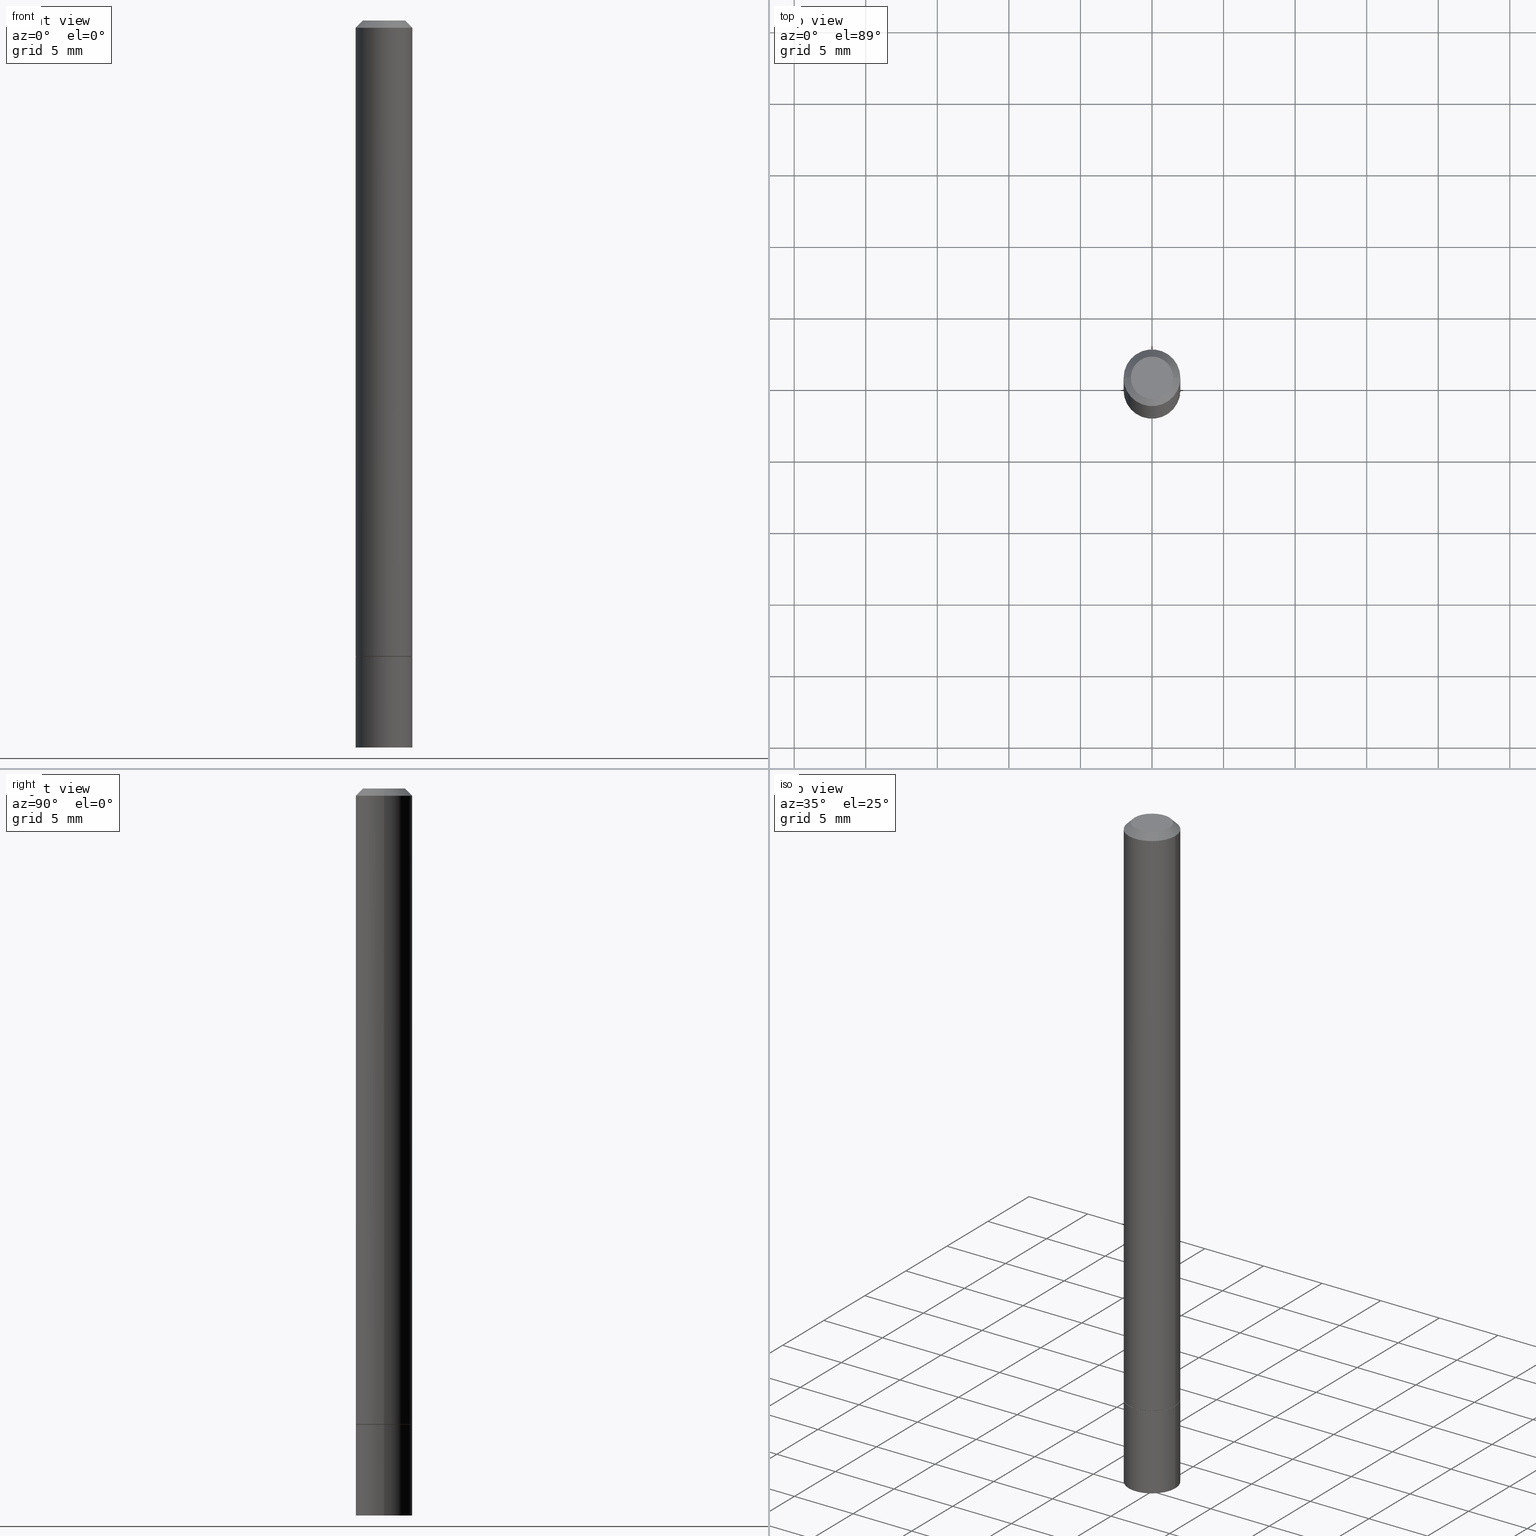
[diagram: canonical four-view strip — front | top / right | iso, engineering-drawing reading convention]
A machine part, canonical four-view strip (front | top / right | iso — engineering-drawing reading convention). The complete STEP part file that produces these views, byte-faithful:
ISO-10303-21;
HEADER;
FILE_DESCRIPTION (( 'STEP AP203' ),
    '1' );
FILE_NAME ('32656.STEP',
    '2022-04-27T15:46:34',
    ( '' ),
    ( '' ),
    'SwSTEP 2.0',
    'SolidWorks 2022',
    '' );
FILE_SCHEMA (( 'CONFIG_CONTROL_DESIGN' ));
ENDSEC;

DATA;
#1 = VECTOR ( 'NONE', #71, 39.37007874015748143 ) ;
#2 = LINE ( 'NONE', #296, #149 ) ;
#3 = ORIENTED_EDGE ( 'NONE', *, *, #269, .T. ) ;
#4 = PERSON_AND_ORGANIZATION ( #363, #278 ) ;
#5 = CARTESIAN_POINT ( 'NONE',  ( 4.279570410823988484E-29, -6.110092342975504671E-15, -1.750000000000000000 ) ) ;
#6 = PRODUCT_DEFINITION ( 'UNKNOWN', '', #216, #56 ) ;
#7 = AXIS2_PLACEMENT_3D ( 'NONE', #118, #110, #234 ) ;
#8 = LINE ( 'NONE', #215, #91 ) ;
#9 = ORIENTED_EDGE ( 'NONE', *, *, #354, .F. ) ;
#10 = CARTESIAN_POINT ( 'NONE',  ( 0.000000000000000000, 0.000000000000000000, 0.000000000000000000 ) ) ;
#11 = ORIENTED_EDGE ( 'NONE', *, *, #310, .T. ) ;
#12 = CIRCLE ( 'NONE', #228, 0.07810000000000000275 ) ;
#13 = LENGTH_MEASURE_WITH_UNIT ( LENGTH_MEASURE( 0.02539999999999999897 ), #43 );
#14 = CIRCLE ( 'NONE', #123, 0.07810000000000000275 ) ;
#15 = CARTESIAN_POINT ( 'NONE',  ( 4.279570410823988484E-29, -6.110092342975504671E-15, -1.750000000000000000 ) ) ;
#16 = CARTESIAN_POINT ( 'NONE',  ( 5.453693851273401335E-16, 0.07809999999999388265, -1.750000000000000222 ) ) ;
#17 = APPROVAL ( #45, 'UNSPECIFIED' ) ;
#18 = CARTESIAN_POINT ( 'NONE',  ( 0.07710000000000000187, -6.648478765425115304E-15, -1.750000000000000000 ) ) ;
#19 = DATE_TIME_ROLE ( 'creation_date' ) ;
#20 = ORIENTED_EDGE ( 'NONE', *, *, #189, .F. ) ;
#21 = DIRECTION ( 'NONE',  ( -2.445468806185136597E-29, 3.491481338843145583E-15, 1.000000000000000000 ) ) ;
#22 = PERSON_AND_ORGANIZATION_ROLE ( 'creator' ) ;
#23 = CARTESIAN_POINT ( 'NONE',  ( 0.05809999999999978376, -5.021147270366713481E-16, -1.707404996039847118E-17 ) ) ;
#24 = CC_DESIGN_APPROVAL ( #17, ( #216 ) ) ;
#25 = DIRECTION ( 'NONE',  ( -1.000000000000000000, 6.982962677686265922E-15, 0.000000000000000000 ) ) ;
#26 = ORIENTED_EDGE ( 'NONE', *, *, #138, .F. ) ;
#27 = EDGE_CURVE ( 'NONE', #131, #72, #231, .T. ) ;
#28 = DIRECTION ( 'NONE',  ( 1.000000000000000000, 0.000000000000000000, 0.000000000000000000 ) ) ;
#29 = CARTESIAN_POINT ( 'NONE',  ( 4.890937612370288047E-31, -6.982962677686311331E-17, -0.02000000000000005940 ) ) ;
#30 = APPLICATION_PROTOCOL_DEFINITION ( 'international standard', 'config_control_design', 1994, #301 ) ;
#31 = VERTEX_POINT ( 'NONE', #121 ) ;
#32 = CARTESIAN_POINT ( 'NONE',  ( 0.000000000000000000, 0.000000000000000000, 0.000000000000000000 ) ) ;
#33 = CARTESIAN_POINT ( 'NONE',  ( 2.336098923648286473E-18, -6.978202948672662576E-15, -1.998636759429106569 ) ) ;
#34 = CONICAL_SURFACE ( 'NONE', #246, 0.07710000000000000187, 0.7853981633974141952 ) ;
#35 = VERTEX_POINT ( 'NONE', #53 ) ;
#36 = ADVANCED_FACE ( 'NONE', ( #117 ), #279, .T. ) ;
#37 = DIRECTION ( 'NONE',  ( -2.445468806185136877E-29, 3.491481338843145188E-15, 1.000000000000000000 ) ) ;
#38 = DIRECTION ( 'NONE',  ( 1.000000000000000000, -6.982962677686266711E-15, 0.000000000000000000 ) ) ;
#39 = VECTOR ( 'NONE', #329, 39.37007874015748143 ) ;
#40 = DIRECTION ( 'NONE',  ( -2.445468806185136597E-29, 3.491481338843145583E-15, 1.000000000000000000 ) ) ;
#41 = ORIENTED_EDGE ( 'NONE', *, *, #354, .T. ) ;
#42 = APPROVAL_PERSON_ORGANIZATION ( #206, #17, #374 ) ;
#43 =( LENGTH_UNIT ( ) NAMED_UNIT ( * ) SI_UNIT ( $, .METRE. ) );
#44 = DIRECTION ( 'NONE',  ( -2.445468806185136597E-29, 3.491481338843145583E-15, 1.000000000000000000 ) ) ;
#45 = APPROVAL_STATUS ( 'not_yet_approved' ) ;
#46 = ORIENTED_EDGE ( 'NONE', *, *, #240, .F. ) ;
#47 = PERSON_AND_ORGANIZATION_ROLE ( 'design_supplier' ) ;
#48 = DIRECTION ( 'NONE',  ( -1.000000000000000000, 6.982962677686265922E-15, 0.000000000000000000 ) ) ;
#49 = FACE_OUTER_BOUND ( 'NONE', #163, .T. ) ;
#50 = VERTEX_POINT ( 'NONE', #23 ) ;
#51 = CARTESIAN_POINT ( 'NONE',  ( 4.889235139238314734E-29, -6.975866849749063412E-15, -1.998636759429106569 ) ) ;
#52 = SHAPE_DEFINITION_REPRESENTATION ( #126, #137 ) ;
#53 = CARTESIAN_POINT ( 'NONE',  ( 0.07710000000000000187, -6.648478765425115304E-15, -1.750000000000000000 ) ) ;
#54 = EDGE_CURVE ( 'NONE', #66, #135, #286, .T. ) ;
#55 = MANIFOLD_SOLID_BREP ( 'Body-Move/Copy2[1]', #383 ) ;
#56 = DESIGN_CONTEXT ( 'detailed design', #136, 'design' ) ;
#57 = AXIS2_PLACEMENT_3D ( 'NONE', #232, #21, #116 ) ;
#58 = LOCAL_TIME ( 11, 46, 34.00000000000000000, #254 ) ;
#59 = APPROVAL_DATE_TIME ( #187, #201 ) ;
#60 = CARTESIAN_POINT ( 'NONE',  ( -2.336098923550534358E-18, -6.978202948672662576E-15, -1.998636759429106569 ) ) ;
#61 = COORDINATED_UNIVERSAL_TIME_OFFSET ( 5, 0, .BEHIND. ) ;
#62 = CARTESIAN_POINT ( 'NONE',  ( -0.07710000000000000187, -5.556965439356245407E-15, -1.750000000000000000 ) ) ;
#63 = EDGE_LOOP ( 'NONE', ( #26, #173, #102 ) ) ;
#64 = CALENDAR_DATE ( 2022, 27, 4 ) ;
#65 = CARTESIAN_POINT ( 'NONE',  ( 4.890937612370288047E-31, -6.982962677686311331E-17, -0.02000000000000005940 ) ) ;
#66 = VERTEX_POINT ( 'NONE', #259 ) ;
#67 = APPROVAL_PERSON_ORGANIZATION ( #4, #201, #263 ) ;
#68 = CC_DESIGN_PERSON_AND_ORGANIZATION_ASSIGNMENT ( #196, #47, ( #216 ) ) ;
#69 = AXIS2_PLACEMENT_3D ( 'NONE', #389, #82, #85 ) ;
#70 = ORIENTED_EDGE ( 'NONE', *, *, #27, .F. ) ;
#71 = DIRECTION ( 'NONE',  ( 0.7071067811865466846, -7.319954787623252890E-15, -0.7071067811865483499 ) ) ;
#72 = VERTEX_POINT ( 'NONE', #88 ) ;
#73 = DIRECTION ( 'NONE',  ( 1.000000000000000000, -6.982962677686266711E-15, 4.877663522807080384E-29 ) ) ;
#74 = ADVANCED_FACE ( 'NONE', ( #294 ), #384, .T. ) ;
#75 = VECTOR ( 'NONE', #350, 39.37007874015748854 ) ;
#76 = CC_DESIGN_PERSON_AND_ORGANIZATION_ASSIGNMENT ( #328, #157, ( #362 ) ) ;
#77 = CIRCLE ( 'NONE', #273, 0.07809999999999978071 ) ;
#78 = CARTESIAN_POINT ( 'NONE',  ( 4.175405657340879278E-46, -5.961372681521788801E-32, -1.707404996040164512E-17 ) ) ;
#79 = APPROVAL_DATE_TIME ( #199, #17 ) ;
#80 = CARTESIAN_POINT ( 'NONE',  ( 4.057101315735705442E-16, 0.05809999999999978376, -2.113920907669868157E-16 ) ) ;
#81 = DIRECTION ( 'NONE',  ( 2.445468806185136597E-29, -3.491481338843145583E-15, -1.000000000000000000 ) ) ;
#82 = DIRECTION ( 'NONE',  ( -2.445468806185136597E-29, 3.491481338843145583E-15, 1.000000000000000000 ) ) ;
#83 = AXIS2_PLACEMENT_3D ( 'NONE', #344, #81, #25 ) ;
#84 = CARTESIAN_POINT ( 'NONE',  ( 4.279570410823988484E-29, -6.110092342975504671E-15, -1.750000000000000000 ) ) ;
#85 = DIRECTION ( 'NONE',  ( 1.000000000000000000, -6.982962677686266711E-15, 0.000000000000000000 ) ) ;
#86 = CARTESIAN_POINT ( 'NONE',  ( -0.07809999999999978071, 4.755397583504327577E-16, -0.02000000000000005940 ) ) ;
#87 = CALENDAR_DATE ( 2022, 27, 4 ) ;
#88 = CARTESIAN_POINT ( 'NONE',  ( 0.07810000000000000275, -6.651970246763958311E-15, -1.748999999999999888 ) ) ;
#89 = CARTESIAN_POINT ( 'NONE',  ( 0.07809999999999987785, -5.453693851272966475E-16, 3.808294061896620098E-30 ) ) ;
#90 = ORIENTED_EDGE ( 'NONE', *, *, #108, .F. ) ;
#91 = VECTOR ( 'NONE', #37, 39.37007874015748143 ) ;
#92 = APPROVAL_STATUS ( 'not_yet_approved' ) ;
#93 = DIRECTION ( 'NONE',  ( -2.445468806185136597E-29, 3.491481338843145583E-15, 1.000000000000000000 ) ) ;
#94 = VERTEX_POINT ( 'NONE', #375 ) ;
#95 = ORIENTED_EDGE ( 'NONE', *, *, #217, .T. ) ;
#96 = CC_DESIGN_PERSON_AND_ORGANIZATION_ASSIGNMENT ( #211, #325, ( #6 ) ) ;
#97 = ORIENTED_EDGE ( 'NONE', *, *, #54, .F. ) ;
#98 = AXIS2_PLACEMENT_3D ( 'NONE', #78, #371, #227 ) ;
#99 = DIRECTION ( 'NONE',  ( 1.000000000000000000, -6.982962677686265922E-15, 4.876176775795935793E-29 ) ) ;
#100 = ADVANCED_FACE ( 'NONE', ( #322 ), #111, .F. ) ;
#101 = LINE ( 'NONE', #357, #39 ) ;
#102 = ORIENTED_EDGE ( 'NONE', *, *, #356, .F. ) ;
#103 = EDGE_LOOP ( 'NONE', ( #148, #177 ) ) ;
#104 = ORIENTED_EDGE ( 'NONE', *, *, #340, .T. ) ;
#105 = VECTOR ( 'NONE', #218, 39.37007874015748854 ) ;
#106 = DIMENSIONAL_EXPONENTS ( 1.000000000000000000, 0.000000000000000000, 0.000000000000000000, 0.000000000000000000, 0.000000000000000000, 0.000000000000000000, 0.000000000000000000 ) ;
#107 = ADVANCED_FACE ( 'NONE', ( #208 ), #34, .T. ) ;
#108 = EDGE_CURVE ( 'NONE', #315, #66, #324, .T. ) ;
#109 = CARTESIAN_POINT ( 'NONE',  ( 4.890937612370273194E-29, -6.982962677686291165E-15, -2.000000000000000000 ) ) ;
#110 = DIRECTION ( 'NONE',  ( 2.445468806185136597E-29, -3.491481338843145583E-15, -1.000000000000000000 ) ) ;
#111 = PLANE ( 'NONE',  #361 ) ;
#112 = DIRECTION ( 'NONE',  ( 1.000000000000000000, -6.982962677686266711E-15, 0.000000000000000000 ) ) ;
#113 = DATE_AND_TIME ( #377, #58 ) ;
#114 = ORIENTED_EDGE ( 'NONE', *, *, #340, .F. ) ;
#115 = AXIS2_PLACEMENT_3D ( 'NONE', #5, #125, #99 ) ;
#116 = DIRECTION ( 'NONE',  ( 1.000000000000000000, -6.982962677686266711E-15, 0.000000000000000000 ) ) ;
#117 = FACE_OUTER_BOUND ( 'NONE', #244, .T. ) ;
#118 = CARTESIAN_POINT ( 'NONE',  ( 1.011659033061865591E-27, -1.444380981787177786E-13, -41.36871549958658534 ) ) ;
#119 = ORIENTED_EDGE ( 'NONE', *, *, #217, .F. ) ;
#120 =( NAMED_UNIT ( * ) PLANE_ANGLE_UNIT ( ) SI_UNIT ( $, .RADIAN. ) );
#121 = CARTESIAN_POINT ( 'NONE',  ( 0.07810000000000000275, -6.655461728102802107E-15, -1.750000000000000000 ) ) ;
#122 = EDGE_LOOP ( 'NONE', ( #237, #230, #293, #222 ) ) ;
#123 = AXIS2_PLACEMENT_3D ( 'NONE', #205, #373, #287 ) ;
#124 = EDGE_LOOP ( 'NONE', ( #97, #355, #204, #295 ) ) ;
#125 = DIRECTION ( 'NONE',  ( -2.438088387897960049E-29, 3.491481338843145188E-15, 1.000000000000000000 ) ) ;
#126 = PRODUCT_DEFINITION_SHAPE ( 'NONE', 'NONE',  #6 ) ;
#127 = ORIENTED_EDGE ( 'NONE', *, *, #367, .F. ) ;
#128 = ADVANCED_FACE ( 'NONE', ( #172 ), #284, .F. ) ;
#129 = CC_DESIGN_SECURITY_CLASSIFICATION ( #292, ( #216 ) ) ;
#130 = DIRECTION ( 'NONE',  ( 1.000000000000000000, -6.982962677686265922E-15, 0.000000000000000000 ) ) ;
#131 = VERTEX_POINT ( 'NONE', #145 ) ;
#132 = EDGE_LOOP ( 'NONE', ( #104, #351, #154, #214 ) ) ;
#133 = CIRCLE ( 'NONE', #210, 0.07810000000000000275 ) ;
#134 = CC_DESIGN_PERSON_AND_ORGANIZATION_ASSIGNMENT ( #169, #22, ( #216 ) ) ;
#135 = VERTEX_POINT ( 'NONE', #255 ) ;
#136 = APPLICATION_CONTEXT ( 'configuration controlled 3d designs of mechanical parts and assemblies' ) ;
#137 = ADVANCED_BREP_SHAPE_REPRESENTATION ( '32656', ( #55, #190, #380 ), #297 ) ;
#138 = EDGE_CURVE ( 'NONE', #315, #267, #239, .T. ) ;
#139 =( CONVERSION_BASED_UNIT ( 'INCH', #13 ) LENGTH_UNIT ( ) NAMED_UNIT ( #106 ) );
#140 = AXIS2_PLACEMENT_3D ( 'NONE', #285, #309, #143 ) ;
#141 = FACE_OUTER_BOUND ( 'NONE', #63, .T. ) ;
#142 = DIRECTION ( 'NONE',  ( 2.445468806185136597E-29, -3.491481338843145583E-15, -1.000000000000000000 ) ) ;
#143 = DIRECTION ( 'NONE',  ( 1.000000000000000000, -6.982962677686266711E-15, 0.000000000000000000 ) ) ;
#144 = PERSON_AND_ORGANIZATION_ROLE ( 'classification_officer' ) ;
#145 = CARTESIAN_POINT ( 'NONE',  ( -0.07810000000000000275, -2.533281367578119089E-15, -1.748999999999999888 ) ) ;
#146 = CYLINDRICAL_SURFACE ( 'NONE', #352, 0.07809999999999987785 ) ;
#147 = APPROVAL_ROLE ( '' ) ;
#148 = ORIENTED_EDGE ( 'NONE', *, *, #167, .T. ) ;
#149 = VECTOR ( 'NONE', #271, 39.37007874015748143 ) ;
#150 = EDGE_CURVE ( 'NONE', #267, #31, #8, .T. ) ;
#151 = VECTOR ( 'NONE', #264, 39.37007874015748143 ) ;
#152 = DIRECTION ( 'NONE',  ( -2.445468806185136597E-29, 3.491481338843145583E-15, 1.000000000000000000 ) ) ;
#153 = DIRECTION ( 'NONE',  ( -2.445468806185136597E-29, 3.491481338843145583E-15, 1.000000000000000000 ) ) ;
#154 = ORIENTED_EDGE ( 'NONE', *, *, #310, .F. ) ;
#155 = ORIENTED_EDGE ( 'NONE', *, *, #183, .F. ) ;
#156 = AXIS2_PLACEMENT_3D ( 'NONE', #253, #342, #314 ) ;
#157 = PERSON_AND_ORGANIZATION_ROLE ( 'design_owner' ) ;
#158 = ORIENTED_EDGE ( 'NONE', *, *, #347, .F. ) ;
#159 = CARTESIAN_POINT ( 'NONE',  ( 4.279570410823988484E-29, -6.110092342975504671E-15, -1.750000000000000000 ) ) ;
#160 = DIRECTION ( 'NONE',  ( -2.445468806185136597E-29, 3.491481338843145583E-15, 1.000000000000000000 ) ) ;
#161 = CIRCLE ( 'NONE', #171, 0.07710000000000000187 ) ;
#162 = CARTESIAN_POINT ( 'NONE',  ( 4.890937612370288047E-31, -6.982962677686311331E-17, -0.02000000000000005940 ) ) ;
#163 = EDGE_LOOP ( 'NONE', ( #119, #166, #272, #182 ) ) ;
#164 = LOCAL_TIME ( 11, 46, 34.00000000000000000, #61 ) ;
#165 = CLOSED_SHELL ( 'NONE', ( #107, #302, #36, #387, #280, #319, #174, #100 ) ) ;
#166 = ORIENTED_EDGE ( 'NONE', *, *, #27, .T. ) ;
#167 = EDGE_CURVE ( 'NONE', #31, #135, #133, .T. ) ;
#168 = DIRECTION ( 'NONE',  ( -2.445468806185136877E-29, 3.491481338843145188E-15, 1.000000000000000000 ) ) ;
#169 = PERSON_AND_ORGANIZATION ( #363, #278 ) ;
#170 = DIRECTION ( 'NONE',  ( 1.000000000000000000, -6.982962677686267499E-15, 4.876176775795935793E-29 ) ) ;
#171 = AXIS2_PLACEMENT_3D ( 'NONE', #15, #152, #348 ) ;
#172 = FACE_OUTER_BOUND ( 'NONE', #103, .T. ) ;
#173 = ORIENTED_EDGE ( 'NONE', *, *, #108, .T. ) ;
#174 = ADVANCED_FACE ( 'NONE', ( #191 ), #333, .F. ) ;
#175 = CYLINDRICAL_SURFACE ( 'NONE', #248, 0.07809999999999987785 ) ;
#176 = DATE_AND_TIME ( #181, #164 ) ;
#177 = ORIENTED_EDGE ( 'NONE', *, *, #308, .T. ) ;
#178 = CARTESIAN_POINT ( 'NONE',  ( 1.011659033061865591E-27, -1.444380981787177786E-13, -41.36871549958658534 ) ) ;
#179 = DIRECTION ( 'NONE',  ( 2.438088387897960049E-29, -3.491481338843145188E-15, -1.000000000000000000 ) ) ;
#180 = AXIS2_PLACEMENT_3D ( 'NONE', #10, #93, #213 ) ;
#181 = CALENDAR_DATE ( 2022, 27, 4 ) ;
#182 = ORIENTED_EDGE ( 'NONE', *, *, #209, .F. ) ;
#183 = EDGE_CURVE ( 'NONE', #233, #131, #241, .T. ) ;
#184 =( NAMED_UNIT ( * ) SI_UNIT ( $, .STERADIAN. ) SOLID_ANGLE_UNIT ( ) );
#185 = CARTESIAN_POINT ( 'NONE',  ( 0.07809999999999980846, -7.518767571312246590E-15, -2.000000000000000000 ) ) ;
#186 = EDGE_LOOP ( 'NONE', ( #369, #41 ) ) ;
#187 = DATE_AND_TIME ( #64, #277 ) ;
#188 = AXIS2_PLACEMENT_3D ( 'NONE', #84, #44, #382 ) ;
#189 = EDGE_CURVE ( 'NONE', #50, #94, #335, .T. ) ;
#190 = MANIFOLD_SOLID_BREP ( 'Body-Move/Copy2[2]', #165 ) ;
#191 = FACE_OUTER_BOUND ( 'NONE', #281, .T. ) ;
#192 = EDGE_LOOP ( 'NONE', ( #11, #95, #318, #158 ) ) ;
#193 = CONICAL_SURFACE ( 'NONE', #7, 2255.510300424363777, 1.553343034274959233 ) ;
#194 = LOCAL_TIME ( 11, 46, 34.00000000000000000, #317 ) ;
#195 = DIRECTION ( 'NONE',  ( -1.000000000000000000, 6.982962677686265922E-15, 0.000000000000000000 ) ) ;
#196 = PERSON_AND_ORGANIZATION ( #363, #278 ) ;
#197 = CARTESIAN_POINT ( 'NONE',  ( 4.279570410823988484E-29, -6.110092342975504671E-15, -1.750000000000000000 ) ) ;
#198 = FACE_OUTER_BOUND ( 'NONE', #221, .T. ) ;
#199 = DATE_AND_TIME ( #229, #194 ) ;
#200 = DIRECTION ( 'NONE',  ( 1.000000000000000000, -6.982962677686266711E-15, 4.876176775795935232E-29 ) ) ;
#201 = APPROVAL ( #92, 'UNSPECIFIED' ) ;
#202 = FACE_OUTER_BOUND ( 'NONE', #192, .T. ) ;
#203 = APPROVAL_STATUS ( 'not_yet_approved' ) ;
#204 = ORIENTED_EDGE ( 'NONE', *, *, #150, .T. ) ;
#205 = CARTESIAN_POINT ( 'NONE',  ( 4.277124942017804002E-29, -6.106600861636660875E-15, -1.748999999999999888 ) ) ;
#206 = PERSON_AND_ORGANIZATION ( #363, #278 ) ;
#207 = CARTESIAN_POINT ( 'NONE',  ( 0.000000000000000000, 0.000000000000000000, 0.000000000000000000 ) ) ;
#208 = FACE_OUTER_BOUND ( 'NONE', #132, .T. ) ;
#209 = EDGE_CURVE ( 'NONE', #364, #94, #305, .T. ) ;
#210 = AXIS2_PLACEMENT_3D ( 'NONE', #159, #40, #38 ) ;
#211 = PERSON_AND_ORGANIZATION ( #363, #278 ) ;
#212 = CC_DESIGN_DATE_AND_TIME_ASSIGNMENT ( #113, #345, ( #292 ) ) ;
#213 = DIRECTION ( 'NONE',  ( 1.000000000000000000, -6.982962677686266711E-15, 4.876176775795935232E-29 ) ) ;
#214 = ORIENTED_EDGE ( 'NONE', *, *, #306, .F. ) ;
#215 = CARTESIAN_POINT ( 'NONE',  ( 0.07810000000000000275, -5.453693851272974364E-16, 3.808294061896625703E-30 ) ) ;
#216 = PRODUCT_DEFINITION_FORMATION_WITH_SPECIFIED_SOURCE ( 'ANY', '', #362, .NOT_KNOWN. ) ;
#217 = EDGE_CURVE ( 'NONE', #131, #364, #101, .T. ) ;
#218 = DIRECTION ( 'NONE',  ( -0.7071067811865232589, 7.493145998870265808E-15, 0.7071067811865715536 ) ) ;
#219 = ORIENTED_EDGE ( 'NONE', *, *, #330, .T. ) ;
#220 = CARTESIAN_POINT ( 'NONE',  ( 4.175405657340879278E-46, -5.961372681521788801E-32, -1.707404996040164512E-17 ) ) ;
#221 = EDGE_LOOP ( 'NONE', ( #20, #46, #3, #298 ) ) ;
#222 = ORIENTED_EDGE ( 'NONE', *, *, #150, .F. ) ;
#223 = CIRCLE ( 'NONE', #57, 0.07810000000000000275 ) ;
#224 = CARTESIAN_POINT ( 'NONE',  ( -0.05809999999999978376, 4.406249449620016509E-16, -1.707404996040460643E-17 ) ) ;
#225 = DIRECTION ( 'NONE',  ( 2.445468806185136597E-29, -3.491481338843145583E-15, -1.000000000000000000 ) ) ;
#226 = DIRECTION ( 'NONE',  ( 2.438088387897960049E-29, -3.491481338843145188E-15, -1.000000000000000000 ) ) ;
#227 = DIRECTION ( 'NONE',  ( 1.000000000000000000, -6.982962677686266711E-15, 4.877663522807080384E-29 ) ) ;
#228 = AXIS2_PLACEMENT_3D ( 'NONE', #109, #291, #112 ) ;
#229 = CALENDAR_DATE ( 2022, 27, 4 ) ;
#230 = ORIENTED_EDGE ( 'NONE', *, *, #54, .T. ) ;
#231 = CIRCLE ( 'NONE', #69, 0.07810000000000000275 ) ;
#232 = CARTESIAN_POINT ( 'NONE',  ( 4.890937612370273194E-29, -6.982962677686291165E-15, -2.000000000000000000 ) ) ;
#233 = VERTEX_POINT ( 'NONE', #62 ) ;
#234 = DIRECTION ( 'NONE',  ( -1.000000000000000000, 6.982962677686265922E-15, 0.000000000000000000 ) ) ;
#235 = ORIENTED_EDGE ( 'NONE', *, *, #269, .F. ) ;
#236 = AXIS2_PLACEMENT_3D ( 'NONE', #162, #160, #130 ) ;
#237 = ORIENTED_EDGE ( 'NONE', *, *, #356, .T. ) ;
#238 = CARTESIAN_POINT ( 'NONE',  ( 0.07809999999999978071, -6.056345204028181313E-16, -0.02000000000000005940 ) ) ;
#239 = LINE ( 'NONE', #33, #242 ) ;
#240 = EDGE_CURVE ( 'NONE', #378, #50, #266, .T. ) ;
#241 = LINE ( 'NONE', #360, #105 ) ;
#242 = VECTOR ( 'NONE', #359, 39.37007874015748143 ) ;
#243 = APPROVAL_PERSON_ORGANIZATION ( #250, #276, #147 ) ;
#244 = EDGE_LOOP ( 'NONE', ( #9, #252, #327, #235 ) ) ;
#245 = ADVANCED_FACE ( 'NONE', ( #303 ), #274, .T. ) ;
#246 = AXIS2_PLACEMENT_3D ( 'NONE', #197, #153, #262 ) ;
#247 = EDGE_CURVE ( 'NONE', #94, #364, #77, .T. ) ;
#248 = AXIS2_PLACEMENT_3D ( 'NONE', #316, #257, #385 ) ;
#249 = FACE_OUTER_BOUND ( 'NONE', #304, .T. ) ;
#250 = PERSON_AND_ORGANIZATION ( #363, #278 ) ;
#251 = FACE_OUTER_BOUND ( 'NONE', #358, .T. ) ;
#252 = ORIENTED_EDGE ( 'NONE', *, *, #189, .T. ) ;
#253 = CARTESIAN_POINT ( 'NONE',  ( 4.279570410823988484E-29, -6.110092342975504671E-15, -1.750000000000000000 ) ) ;
#254 = COORDINATED_UNIVERSAL_TIME_OFFSET ( 5, 0, .BEHIND. ) ;
#255 = CARTESIAN_POINT ( 'NONE',  ( -0.07810000000000000275, -5.991593633702259259E-15, -1.750000000000000000 ) ) ;
#256 = CONICAL_SURFACE ( 'NONE', #323, 2255.510300424363777, 1.553343034274959233 ) ;
#257 = DIRECTION ( 'NONE',  ( -2.445468806185136597E-29, 3.491481338843145583E-15, 1.000000000000000000 ) ) ;
#258 = COORDINATED_UNIVERSAL_TIME_OFFSET ( 5, 0, .BEHIND. ) ;
#259 = CARTESIAN_POINT ( 'NONE',  ( -0.07809999999999980846, -6.437593292558994518E-15, -2.000000000000000000 ) ) ;
#260 = AXIS2_PLACEMENT_3D ( 'NONE', #207, #341, #200 ) ;
#261 = LINE ( 'NONE', #18, #75 ) ;
#262 = DIRECTION ( 'NONE',  ( 1.000000000000000000, -6.982962677686265922E-15, 0.000000000000000000 ) ) ;
#263 = APPROVAL_ROLE ( '' ) ;
#264 = DIRECTION ( 'NONE',  ( -2.445468806185136877E-29, 3.491481338843145188E-15, 1.000000000000000000 ) ) ;
#265 = MECHANICAL_CONTEXT ( 'NONE', #301, 'mechanical' ) ;
#266 = CIRCLE ( 'NONE', #282, 0.05809999999999978376 ) ;
#267 = VERTEX_POINT ( 'NONE', #185 ) ;
#268 = DIRECTION ( 'NONE',  ( 0.000000000000000000, 0.000000000000000000, 1.000000000000000000 ) ) ;
#269 = EDGE_CURVE ( 'NONE', #378, #364, #2, .T. ) ;
#270 = DIRECTION ( 'NONE',  ( 1.000000000000000000, -6.982962677686265922E-15, 0.000000000000000000 ) ) ;
#271 = DIRECTION ( 'NONE',  ( -0.7071067811865466846, 2.468850131082247989E-15, -0.7071067811865483499 ) ) ;
#272 = ORIENTED_EDGE ( 'NONE', *, *, #347, .T. ) ;
#273 = AXIS2_PLACEMENT_3D ( 'NONE', #65, #326, #270 ) ;
#274 = CYLINDRICAL_SURFACE ( 'NONE', #180, 0.07810000000000000275 ) ;
#275 = ORIENTED_EDGE ( 'NONE', *, *, #306, .T. ) ;
#276 = APPROVAL ( #203, 'UNSPECIFIED' ) ;
#277 = LOCAL_TIME ( 11, 46, 34.00000000000000000, #388 ) ;
#278 = ORGANIZATION ( 'UNSPECIFIED', 'UNSPECIFIED', '' ) ;
#279 = CONICAL_SURFACE ( 'NONE', #334, 0.07809999999999978071, 0.7853981633974471688 ) ;
#280 = ADVANCED_FACE ( 'NONE', ( #49 ), #175, .T. ) ;
#281 = EDGE_LOOP ( 'NONE', ( #114, #346 ) ) ;
#282 = AXIS2_PLACEMENT_3D ( 'NONE', #220, #336, #73 ) ;
#283 = CARTESIAN_POINT ( 'NONE',  ( 0.000000000000000000, 0.000000000000000000, 0.000000000000000000 ) ) ;
#284 = PLANE ( 'NONE',  #366 ) ;
#285 = CARTESIAN_POINT ( 'NONE',  ( 4.279570410823988484E-29, -6.110092342975504671E-15, -1.750000000000000000 ) ) ;
#286 = LINE ( 'NONE', #289, #151 ) ;
#287 = DIRECTION ( 'NONE',  ( 1.000000000000000000, -6.982962677686266711E-15, 0.000000000000000000 ) ) ;
#288 = SECURITY_CLASSIFICATION_LEVEL ( 'unclassified' ) ;
#289 = CARTESIAN_POINT ( 'NONE',  ( -0.07810000000000000275, 5.549338766286382647E-16, -3.841688305489081275E-30 ) ) ;
#290 = CIRCLE ( 'NONE', #140, 0.07810000000000000275 ) ;
#291 = DIRECTION ( 'NONE',  ( -2.445468806185136597E-29, 3.491481338843145583E-15, 1.000000000000000000 ) ) ;
#292 = SECURITY_CLASSIFICATION ( '', '', #288 ) ;
#293 = ORIENTED_EDGE ( 'NONE', *, *, #167, .F. ) ;
#294 = FACE_OUTER_BOUND ( 'NONE', #124, .T. ) ;
#295 = ORIENTED_EDGE ( 'NONE', *, *, #308, .F. ) ;
#296 = CARTESIAN_POINT ( 'NONE',  ( -0.07809999999999978071, 4.755397583504327577E-16, -0.02000000000000005940 ) ) ;
#297 =( GEOMETRIC_REPRESENTATION_CONTEXT ( 3 ) GLOBAL_UNCERTAINTY_ASSIGNED_CONTEXT ( ( #331 ) ) GLOBAL_UNIT_ASSIGNED_CONTEXT ( ( #139, #120, #184 ) ) REPRESENTATION_CONTEXT ( 'NONE', 'WORKASPACE' ) );
#298 = ORIENTED_EDGE ( 'NONE', *, *, #209, .T. ) ;
#299 = VECTOR ( 'NONE', #312, 39.37007874015748143 ) ;
#300 = ADVANCED_FACE ( 'NONE', ( #251 ), #193, .F. ) ;
#301 = APPLICATION_CONTEXT ( 'configuration controlled 3d designs of mechanical parts and assemblies' ) ;
#302 = ADVANCED_FACE ( 'NONE', ( #202 ), #146, .T. ) ;
#303 = FACE_OUTER_BOUND ( 'NONE', #122, .T. ) ;
#304 = EDGE_LOOP ( 'NONE', ( #155, #219, #275, #70 ) ) ;
#305 = CIRCLE ( 'NONE', #236, 0.07809999999999978071 ) ;
#306 = EDGE_CURVE ( 'NONE', #35, #72, #261, .T. ) ;
#307 = LOCAL_TIME ( 11, 46, 34.00000000000000000, #258 ) ;
#308 = EDGE_CURVE ( 'NONE', #135, #31, #290, .T. ) ;
#309 = DIRECTION ( 'NONE',  ( -2.445468806185136597E-29, 3.491481338843145583E-15, 1.000000000000000000 ) ) ;
#310 = EDGE_CURVE ( 'NONE', #72, #131, #14, .T. ) ;
#311 = DATE_AND_TIME ( #87, #307 ) ;
#312 = DIRECTION ( 'NONE',  ( -0.9998476951563912696, 6.920964387254055211E-15, -0.01745240643727760319 ) ) ;
#313 = CIRCLE ( 'NONE', #156, 0.07710000000000000187 ) ;
#314 = DIRECTION ( 'NONE',  ( 1.000000000000000000, -6.982962677686265922E-15, 0.000000000000000000 ) ) ;
#315 = VERTEX_POINT ( 'NONE', #51 ) ;
#316 = CARTESIAN_POINT ( 'NONE',  ( 0.000000000000000000, 0.000000000000000000, 0.000000000000000000 ) ) ;
#317 = COORDINATED_UNIVERSAL_TIME_OFFSET ( 5, 0, .BEHIND. ) ;
#318 = ORIENTED_EDGE ( 'NONE', *, *, #247, .F. ) ;
#319 = ADVANCED_FACE ( 'NONE', ( #249 ), #337, .T. ) ;
#320 = DIRECTION ( 'NONE',  ( -2.445468806185136597E-29, 3.491481338843145583E-15, 1.000000000000000000 ) ) ;
#321 = APPROVAL_DATE_TIME ( #311, #276 ) ;
#322 = FACE_OUTER_BOUND ( 'NONE', #186, .T. ) ;
#323 = AXIS2_PLACEMENT_3D ( 'NONE', #178, #225, #195 ) ;
#324 = LINE ( 'NONE', #60, #299 ) ;
#325 = PERSON_AND_ORGANIZATION_ROLE ( 'creator' ) ;
#326 = DIRECTION ( 'NONE',  ( -2.445468806185136597E-29, 3.491481338843145583E-15, 1.000000000000000000 ) ) ;
#327 = ORIENTED_EDGE ( 'NONE', *, *, #247, .T. ) ;
#328 = PERSON_AND_ORGANIZATION ( #363, #278 ) ;
#329 = DIRECTION ( 'NONE',  ( -2.445468806185136877E-29, 3.491481338843145188E-15, 1.000000000000000000 ) ) ;
#330 = EDGE_CURVE ( 'NONE', #233, #35, #161, .T. ) ;
#331 = UNCERTAINTY_MEASURE_WITH_UNIT (LENGTH_MEASURE( 1.000000000000000082E-05 ), #139, 'distance_accuracy_value', 'NONE');
#332 = CC_DESIGN_APPROVAL ( #201, ( #6 ) ) ;
#333 = PLANE ( 'NONE',  #115 ) ;
#334 = AXIS2_PLACEMENT_3D ( 'NONE', #29, #142, #48 ) ;
#335 = LINE ( 'NONE', #238, #1 ) ;
#336 = DIRECTION ( 'NONE',  ( -2.445468806185136597E-29, 3.491481338843145583E-15, 1.000000000000000000 ) ) ;
#337 = CONICAL_SURFACE ( 'NONE', #188, 0.07710000000000000187, 0.7853981633974141952 ) ;
#338 = ADVANCED_FACE ( 'NONE', ( #141 ), #256, .F. ) ;
#339 = CIRCLE ( 'NONE', #98, 0.05809999999999978376 ) ;
#340 = EDGE_CURVE ( 'NONE', #35, #233, #313, .T. ) ;
#341 = DIRECTION ( 'NONE',  ( -2.445468806185136597E-29, 3.491481338843145583E-15, 1.000000000000000000 ) ) ;
#342 = DIRECTION ( 'NONE',  ( -2.445468806185136597E-29, 3.491481338843145583E-15, 1.000000000000000000 ) ) ;
#343 = DIRECTION ( 'NONE',  ( -1.000000000000000000, 6.982962677686265922E-15, -4.876176775795935793E-29 ) ) ;
#344 = CARTESIAN_POINT ( 'NONE',  ( 4.890937612370288047E-31, -6.982962677686311331E-17, -0.02000000000000005940 ) ) ;
#345 = DATE_TIME_ROLE ( 'classification_date' ) ;
#346 = ORIENTED_EDGE ( 'NONE', *, *, #330, .F. ) ;
#347 = EDGE_CURVE ( 'NONE', #72, #94, #376, .T. ) ;
#348 = DIRECTION ( 'NONE',  ( 1.000000000000000000, -6.982962677686265922E-15, 0.000000000000000000 ) ) ;
#349 = ORIENTED_EDGE ( 'NONE', *, *, #138, .T. ) ;
#350 = DIRECTION ( 'NONE',  ( 0.7071067811865232589, -2.468850131082003836E-15, 0.7071067811865715536 ) ) ;
#351 = ORIENTED_EDGE ( 'NONE', *, *, #183, .T. ) ;
#352 = AXIS2_PLACEMENT_3D ( 'NONE', #283, #320, #170 ) ;
#353 = APPLICATION_PROTOCOL_DEFINITION ( 'international standard', 'config_control_design', 1994, #136 ) ;
#354 = EDGE_CURVE ( 'NONE', #50, #378, #339, .T. ) ;
#355 = ORIENTED_EDGE ( 'NONE', *, *, #367, .T. ) ;
#356 = EDGE_CURVE ( 'NONE', #267, #66, #223, .T. ) ;
#357 = CARTESIAN_POINT ( 'NONE',  ( -0.07809999999999987785, 5.549338766286373773E-16, -3.841688305489075670E-30 ) ) ;
#358 = EDGE_LOOP ( 'NONE', ( #90, #349, #127 ) ) ;
#359 = DIRECTION ( 'NONE',  ( 0.9998476951563912696, -6.920387862090565034E-15, -0.01745240643727760319 ) ) ;
#360 = CARTESIAN_POINT ( 'NONE',  ( -0.07710000000000000187, -5.562263893704467020E-15, -1.750000000000000000 ) ) ;
#361 = AXIS2_PLACEMENT_3D ( 'NONE', #80, #179, #386 ) ;
#362 = PRODUCT ( '32656', '32656', '', ( #265 ) ) ;
#363 = PERSON ( 'UNSPECIFIED', 'UNSPECIFIED', 'UNSPECIFIED', ('UNSPECIFIED'), ('UNSPECIFIED'), ('UNSPECIFIED') ) ;
#364 = VERTEX_POINT ( 'NONE', #86 ) ;
#365 = VECTOR ( 'NONE', #168, 39.37007874015748143 ) ;
#366 = AXIS2_PLACEMENT_3D ( 'NONE', #16, #226, #343 ) ;
#367 = EDGE_CURVE ( 'NONE', #66, #267, #12, .T. ) ;
#368 = CONICAL_SURFACE ( 'NONE', #83, 0.07809999999999978071, 0.7853981633974471688 ) ;
#369 = ORIENTED_EDGE ( 'NONE', *, *, #240, .T. ) ;
#370 = PRODUCT_RELATED_PRODUCT_CATEGORY ( 'detail', '', ( #362 ) ) ;
#371 = DIRECTION ( 'NONE',  ( -2.445468806185136597E-29, 3.491481338843145583E-15, 1.000000000000000000 ) ) ;
#372 = PERSON_AND_ORGANIZATION ( #363, #278 ) ;
#373 = DIRECTION ( 'NONE',  ( -2.445468806185136597E-29, 3.491481338843145583E-15, 1.000000000000000000 ) ) ;
#374 = APPROVAL_ROLE ( '' ) ;
#375 = CARTESIAN_POINT ( 'NONE',  ( 0.07809999999999978071, -6.056345204028181313E-16, -0.02000000000000005940 ) ) ;
#376 = LINE ( 'NONE', #89, #365 ) ;
#377 = CALENDAR_DATE ( 2022, 27, 4 ) ;
#378 = VERTEX_POINT ( 'NONE', #224 ) ;
#379 = CC_DESIGN_DATE_AND_TIME_ASSIGNMENT ( #176, #19, ( #6 ) ) ;
#380 = AXIS2_PLACEMENT_3D ( 'NONE', #32, #268, #28 ) ;
#381 = CC_DESIGN_APPROVAL ( #276, ( #292 ) ) ;
#382 = DIRECTION ( 'NONE',  ( 1.000000000000000000, -6.982962677686265922E-15, 0.000000000000000000 ) ) ;
#383 = CLOSED_SHELL ( 'NONE', ( #245, #300, #338, #74, #128 ) ) ;
#384 = CYLINDRICAL_SURFACE ( 'NONE', #260, 0.07810000000000000275 ) ;
#385 = DIRECTION ( 'NONE',  ( 1.000000000000000000, -6.982962677686267499E-15, 4.876176775795935793E-29 ) ) ;
#386 = DIRECTION ( 'NONE',  ( -1.000000000000000000, 6.982962677686265922E-15, -4.876176775795935793E-29 ) ) ;
#387 = ADVANCED_FACE ( 'NONE', ( #198 ), #368, .T. ) ;
#388 = COORDINATED_UNIVERSAL_TIME_OFFSET ( 5, 0, .BEHIND. ) ;
#389 = CARTESIAN_POINT ( 'NONE',  ( 4.277124942017804002E-29, -6.106600861636660875E-15, -1.748999999999999888 ) ) ;
#390 = CC_DESIGN_PERSON_AND_ORGANIZATION_ASSIGNMENT ( #372, #144, ( #292 ) ) ;
ENDSEC;
END-ISO-10303-21;
